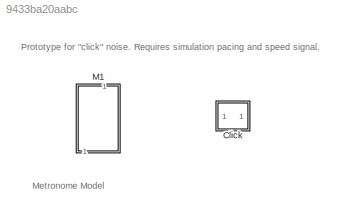
MODEL slx_9433ba20aabc
KIND library
CONFIG SolverName = VariableStepAuto
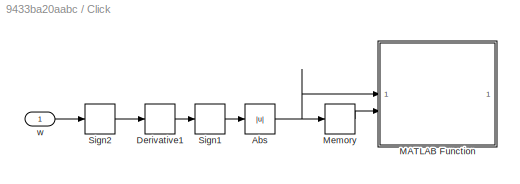
BLOCK [SubSystem] Click
BLOCK [Abs] Click/Abs
  SaturateOnIntegerOverflow = off
BLOCK [Derivative] Click/Derivative1
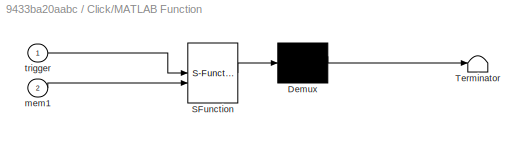
BLOCK [SubSystem] Click/MATLAB Function
  ErrorFcn = Stateflow.Translate.translate
  PermitHierarchicalResolution = ExplicitOnly
  SFBlockType = MATLAB Function
  TreatAsAtomicUnit = on
BLOCK [Demux] Click/MATLAB Function/ Demux 
  Outputs = 1
BLOCK [S-Function] Click/MATLAB Function/ SFunction 
  EnableBusSupport = off
  FunctionName = sf_sfun
  PortCounts = [2 1]
  SFcnIsStateOwnerBlock = off
  SFunctionDeploymentMode = off
  Tag = Stateflow S-Function 2
BLOCK [Terminator] Click/MATLAB Function/ Terminator 
BLOCK [Inport] Click/MATLAB Function/mem1
  Port = 2
BLOCK [Inport] Click/MATLAB Function/trigger
BLOCK [Memory] Click/Memory
  InheritSampleTime = on
BLOCK [Signum] Click/Sign1
BLOCK [Signum] Click/Sign2
BLOCK [Inport] Click/w
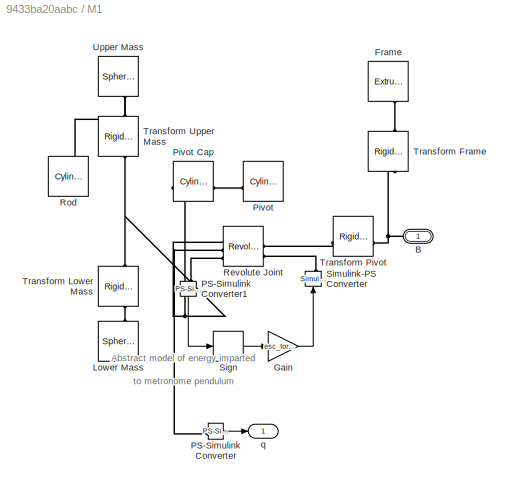
BLOCK [SubSystem] M1
  NameLocation = right
BLOCK [PMIOPort] M1/B
  Side = Left
BLOCK [Reference] M1/Frame  REF=sm_lib/Body Elements/Extruded Solid
  NameLocation = left
  SourceBlock = sm_lib/Body Elements/Extruded Solid
  SourceType = Extruded Solid
BLOCK [Gain] M1/Gain
  Gain = esc_torque
BLOCK [Reference] M1/Lower Mass  REF=sm_lib/Body Elements/Spherical Solid
  NameLocation = left
  SourceBlock = sm_lib/Body Elements/Spherical Solid
  SourceType = Spherical Solid
BLOCK [Reference] M1/PS-Simulink Converter  REF=nesl_utility/PS-Simulink
Converter
  SourceBlock = nesl_utility/PS-Simulink\nConverter
  SourceType = PS-Simulink\nConverter
BLOCK [Reference] M1/PS-Simulink Converter1  REF=nesl_utility/PS-Simulink
Converter
  NameLocation = right
  SourceBlock = nesl_utility/PS-Simulink\nConverter
  SourceType = PS-Simulink\nConverter
BLOCK [Reference] M1/Pivot  REF=sm_lib/Body Elements/Cylindrical Solid
  SourceBlock = sm_lib/Body Elements/Cylindrical Solid
  SourceType = Cylindrical Solid
BLOCK [Reference] M1/Pivot Cap  REF=sm_lib/Body Elements/Cylindrical Solid
  SourceBlock = sm_lib/Body Elements/Cylindrical Solid
  SourceType = Cylindrical Solid
BLOCK [Reference] M1/Revolute Joint  REF=sm_lib/Joints/Revolute Joint
  SourceBlock = sm_lib/Joints/Revolute Joint
  SourceType = Revolute Joint
BLOCK [Reference] M1/Rod  REF=sm_lib/Body Elements/Cylindrical Solid
  NameLocation = left
  SourceBlock = sm_lib/Body Elements/Cylindrical Solid
  SourceType = Cylindrical Solid
BLOCK [Signum] M1/Sign
  ZeroCross = off
BLOCK [Reference] M1/Simulink-PS Converter  REF=nesl_utility/Simulink-PS
Converter
  NameLocation = right
  SourceBlock = nesl_utility/Simulink-PS\nConverter
  SourceType = Simulink-PS\nConverter
BLOCK [Reference] M1/Transform Frame  REF=sm_lib/Frames and
Transforms/Rigid
Transform
  NameLocation = left
  SourceBlock = sm_lib/Frames and\nTransforms/Rigid\nTransform
  SourceType = Rigid\nTransform
BLOCK [Reference] M1/Transform Lower Mass  REF=sm_lib/Frames and
Transforms/Rigid
Transform
  NameLocation = left
  SourceBlock = sm_lib/Frames and\nTransforms/Rigid\nTransform
  SourceType = Rigid\nTransform
BLOCK [Reference] M1/Transform Pivot  REF=sm_lib/Frames and
Transforms/Rigid
Transform
  SourceBlock = sm_lib/Frames and\nTransforms/Rigid\nTransform
  SourceType = Rigid\nTransform
BLOCK [Reference] M1/Transform Upper Mass  REF=sm_lib/Frames and
Transforms/Rigid
Transform
  NameLocation = right
  SourceBlock = sm_lib/Frames and\nTransforms/Rigid\nTransform
  SourceType = Rigid\nTransform
BLOCK [Reference] M1/Upper Mass  REF=sm_lib/Body Elements/Spherical Solid
  NameLocation = right
  SourceBlock = sm_lib/Body Elements/Spherical Solid
  SourceType = Spherical Solid
BLOCK [Outport] M1/q
ANNOTATION (root): Metronome Model
ANNOTATION (root): Prototype for "click" noise. Requires simulation pacing and speed signal.
ANNOTATION M1: Abstract model of energy imparted to metronome pendulum by escapement mechanism.
NET Click/Abs:1 -> Click/MATLAB Function:1, Click/Memory:1
LINE Click/Derivative1:1 -> Click/Sign1:1
LINE Click/Memory:1 -> Click/MATLAB Function:2
LINE Click/Sign1:1 -> Click/Abs:1
LINE Click/Sign2:1 -> Click/Derivative1:1
LINE Click/w:1 -> Click/Sign2:1
LINE M1/Gain:1 -> M1/Simulink-PS Converter:1
LINE M1/PS-Simulink Converter1:1 -> M1/Sign:1
LINE M1/PS-Simulink Converter:1 -> M1/q:1
LINE M1/Sign:1 -> M1/Gain:1
PNET net1: M1/B:RConn1 -- M1/Transform Frame:LConn1 -- M1/Transform Pivot:LConn1
PLINE M1/Frame:RConn1 -- M1/Transform Frame:RConn1
PLINE M1/Lower Mass:RConn1 -- M1/Transform Lower Mass:RConn1
PLINE M1/PS-Simulink Converter1:LConn1 -- M1/Revolute Joint:RConn3
PLINE M1/PS-Simulink Converter:LConn1 -- M1/Revolute Joint:RConn2
PLINE M1/Pivot Cap:LConn1 -- M1/Pivot:LConn1
PNET net2: M1/Pivot Cap:RConn1 -- M1/Revolute Joint:RConn1 -- M1/Transform Lower Mass:LConn1 -- M1/Transform Upper Mass:LConn1
PLINE M1/Revolute Joint:LConn1 -- M1/Transform Pivot:RConn1
PLINE M1/Revolute Joint:LConn2 -- M1/Simulink-PS Converter:RConn1
PNET net3: M1/Rod:LConn1 -- M1/Transform Upper Mass:RConn1 -- M1/Upper Mass:RConn1
note: NET lines group one-source signal fan-out (src -> all destinations, sorted); 1:1 wires keep LINE; PNET lines group multi-terminal physical nets as a canonical sorted terminal list (undirected conserving connections); 2-terminal nets keep the pairwise PLINE form
CHART Click/MATLAB Function states=1 transitions=1
  STATE_LABEL 'eML_blk_kernel()'
  STATE_LABEL "SCRIPT:\nfunction fcn(trigger,mem1)\ncoder.extrinsic('sound');\nif trigger == 1 && mem1 ~= 1\n\nFs = 44100;\nb = [0.0109252929687500;0.0116882324218750;0.0122680664062500;0.0130615234375000;0.0144348144531250;0.0161743164062500;0.0177307128906250;0.0198669433593750;0.0233459472656250;0.0292358398437500;0.0350646972656250;0.0434570312500000;0.0539245605468750;0.0662536621093750;0.0837402343750000;0.10580...<+3608ch>"
CHART  states=0 transitions=0
